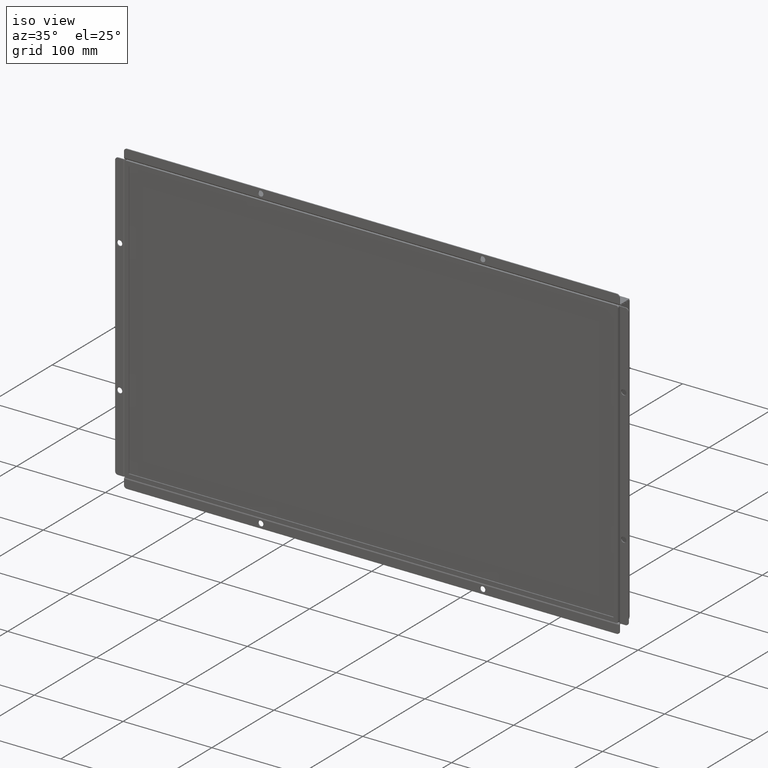
[diagram: clean part render]
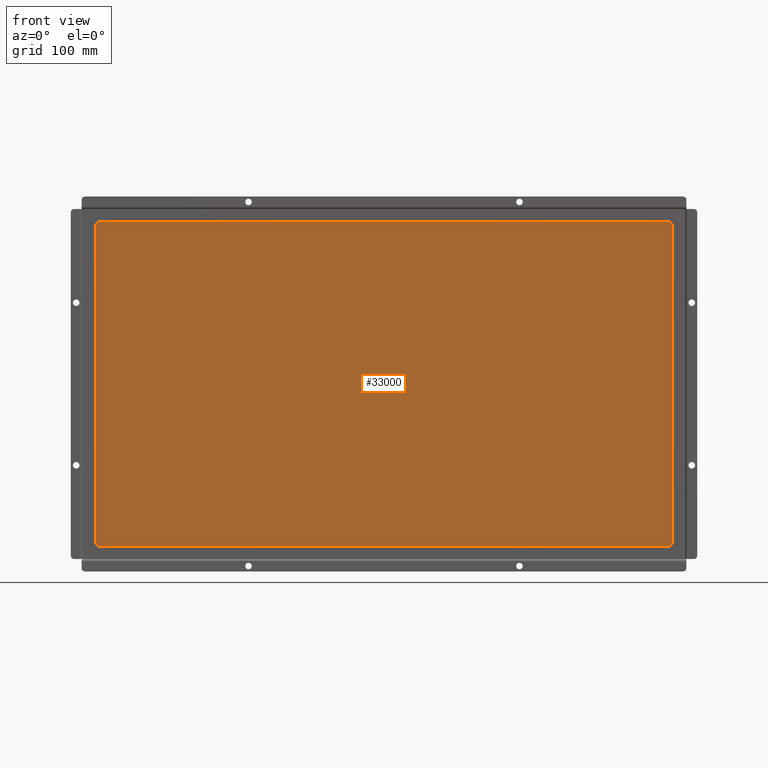
[diagram: tour spotlight — one face highlighted and labeled with its STEP entity id]
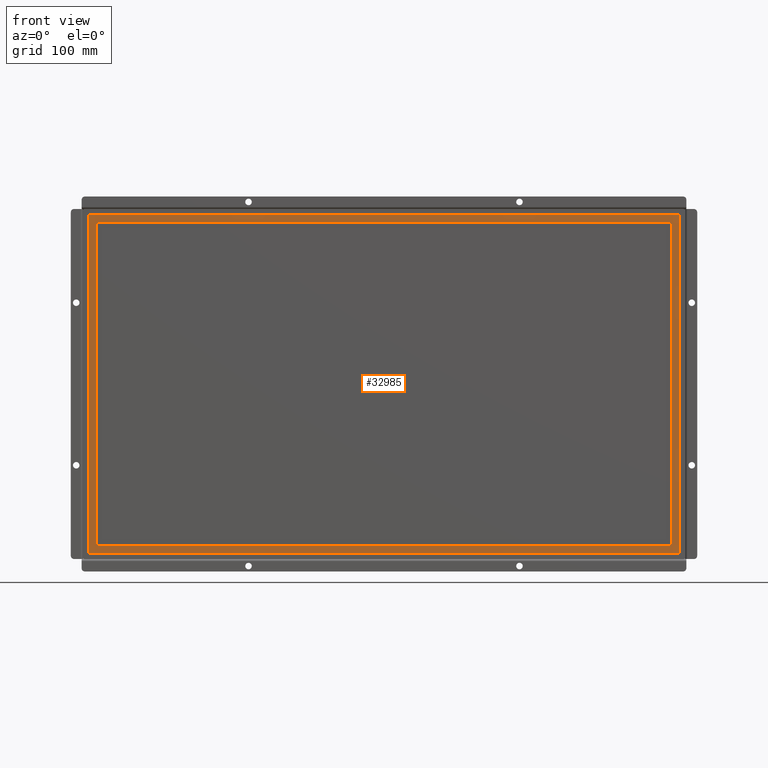
[diagram: tour spotlight — one face highlighted and labeled with its STEP entity id]
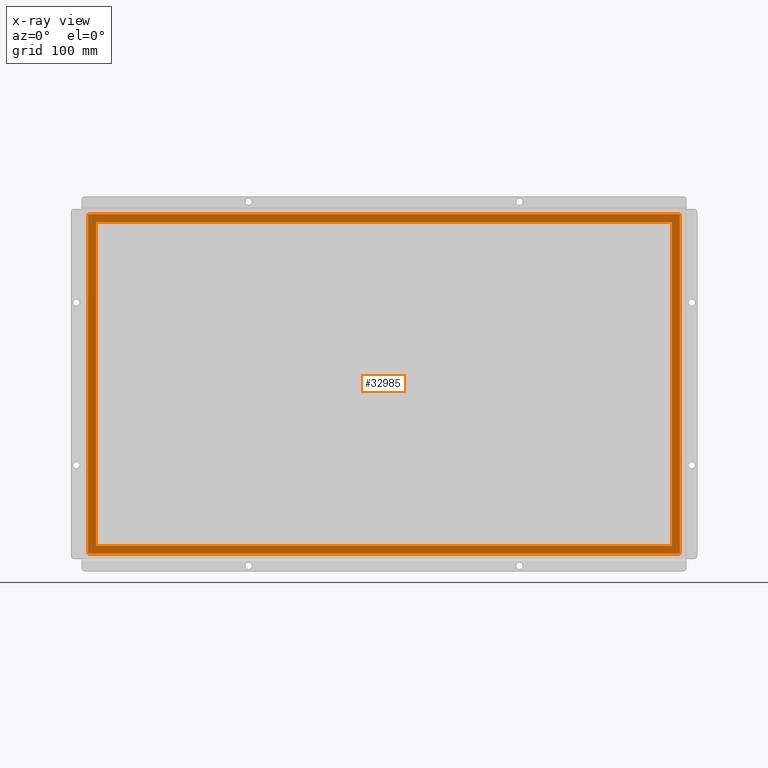
[diagram: x-ray of the same camera — body ghosted, this tour face saturated]
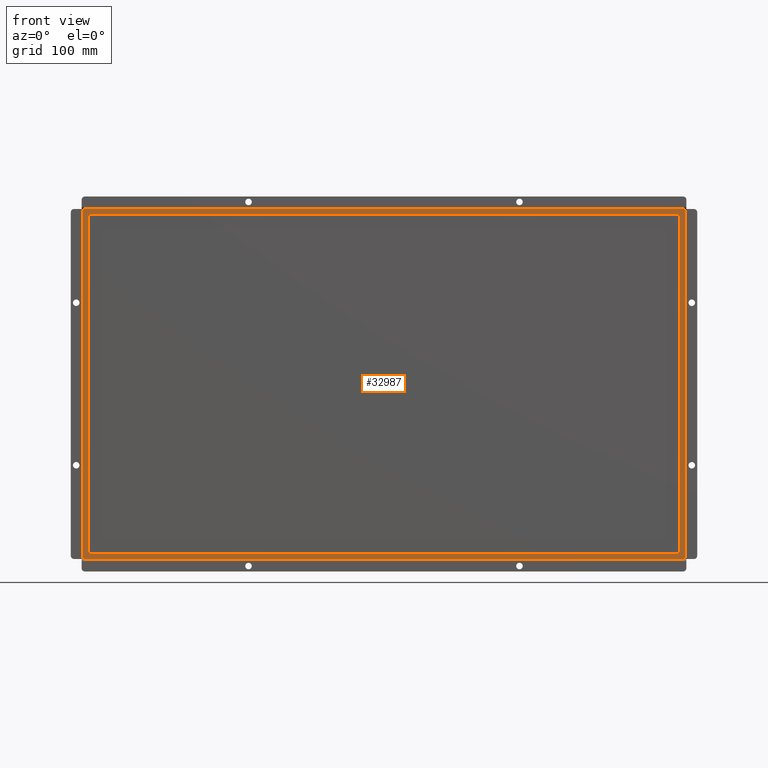
[diagram: tour spotlight — one face highlighted and labeled with its STEP entity id]
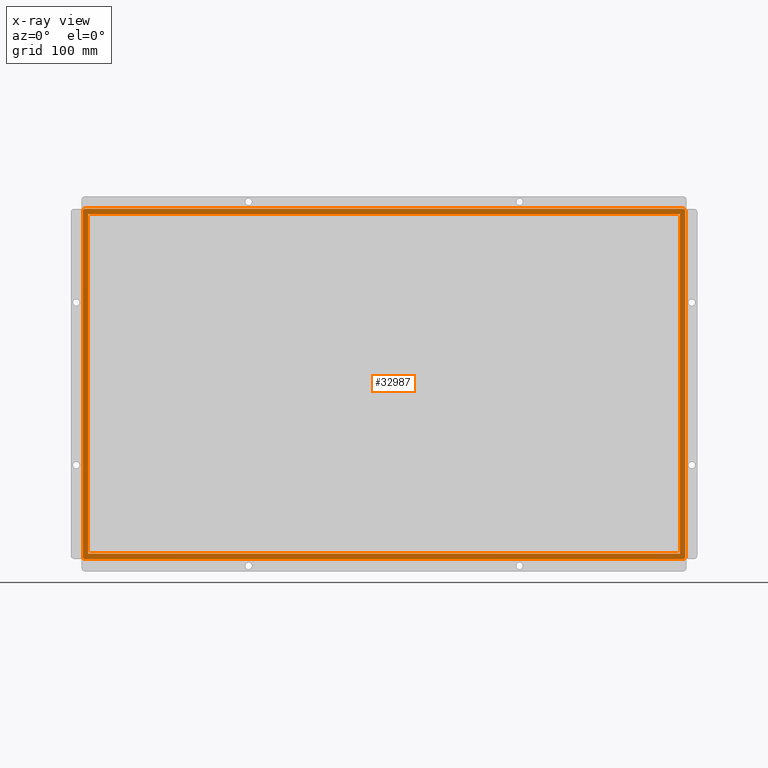
[diagram: x-ray of the same camera — body ghosted, this tour face saturated]
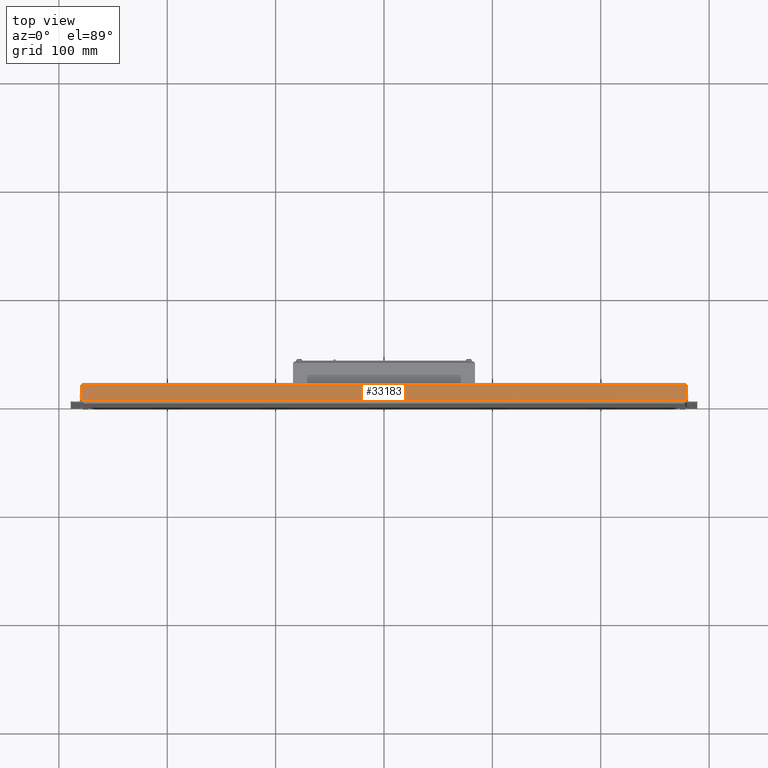
[diagram: tour spotlight — one face highlighted and labeled with its STEP entity id]
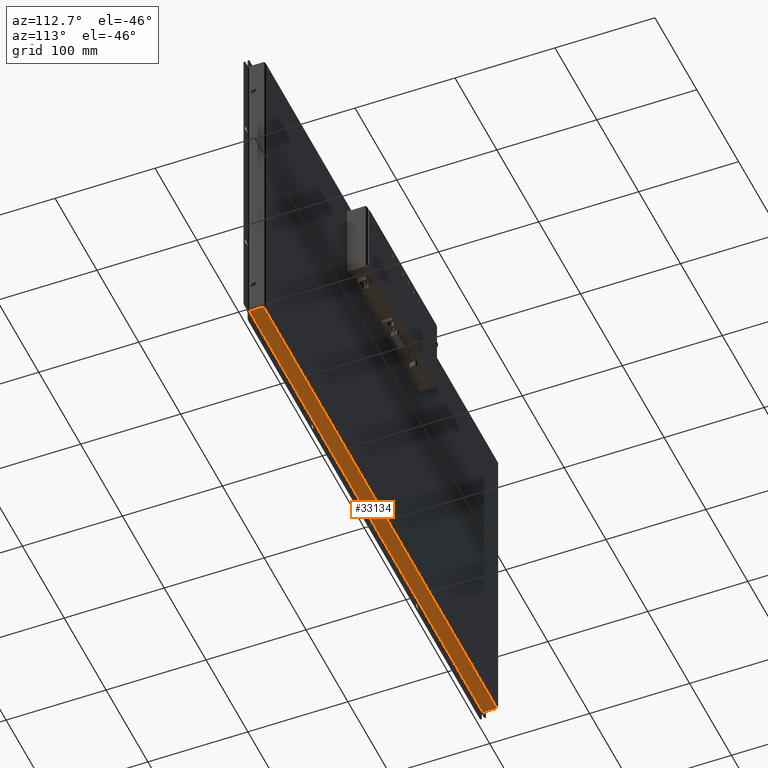
[diagram: tour spotlight — one face highlighted and labeled with its STEP entity id]
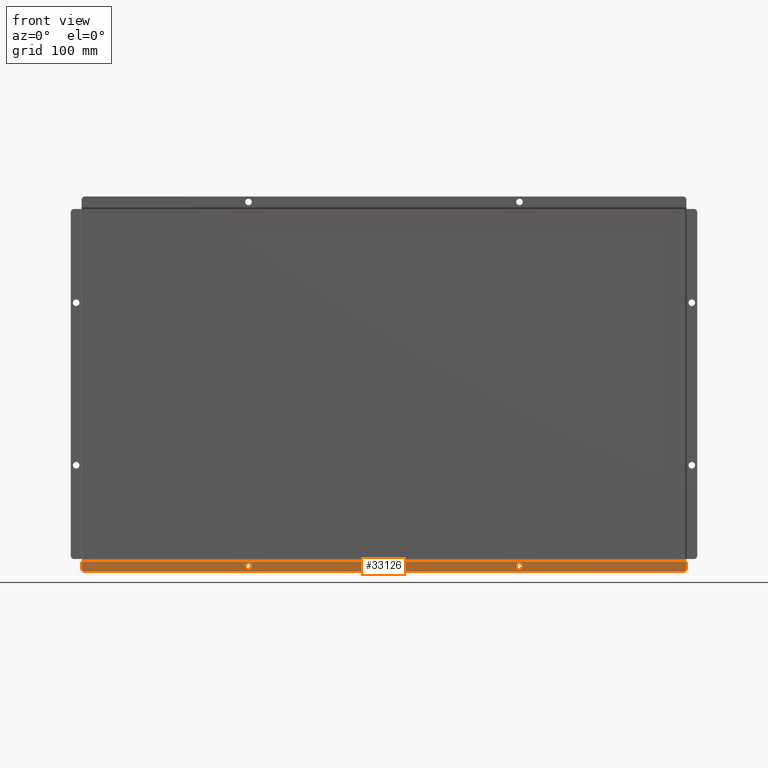
[diagram: tour spotlight — one face highlighted and labeled with its STEP entity id]
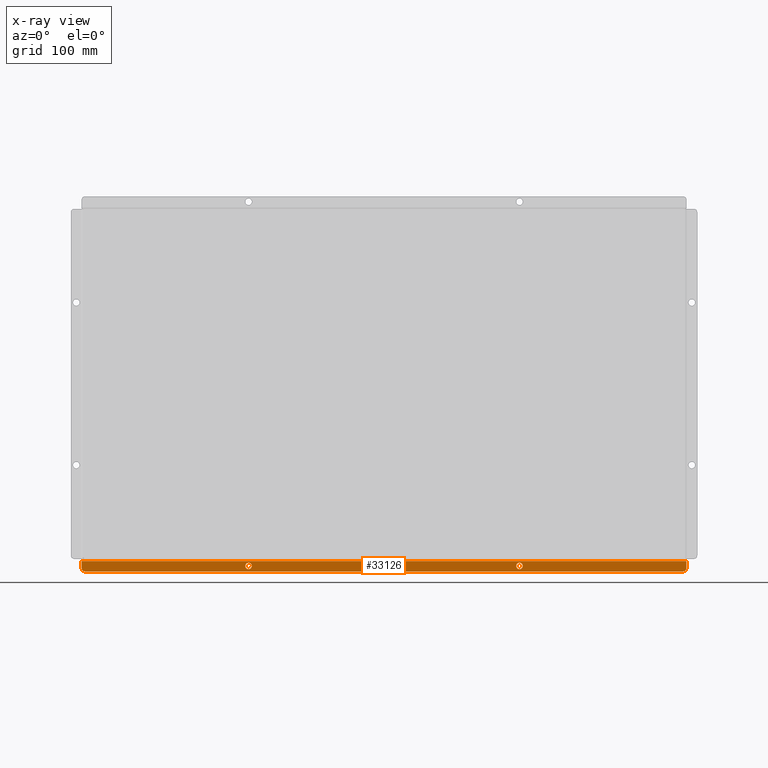
[diagram: x-ray of the same camera — body ghosted, this tour face saturated]
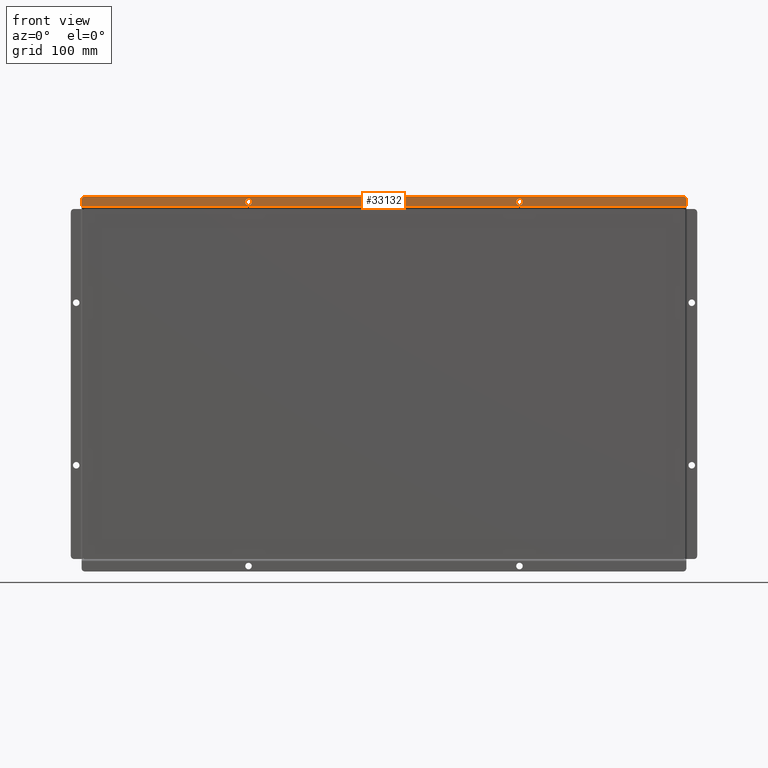
[diagram: tour spotlight — one face highlighted and labeled with its STEP entity id]
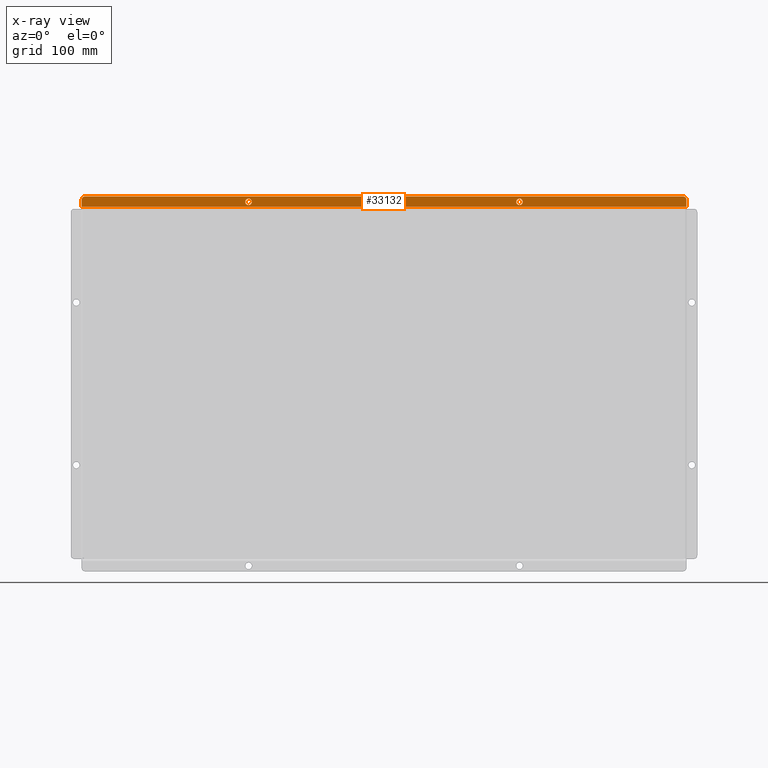
[diagram: x-ray of the same camera — body ghosted, this tour face saturated]
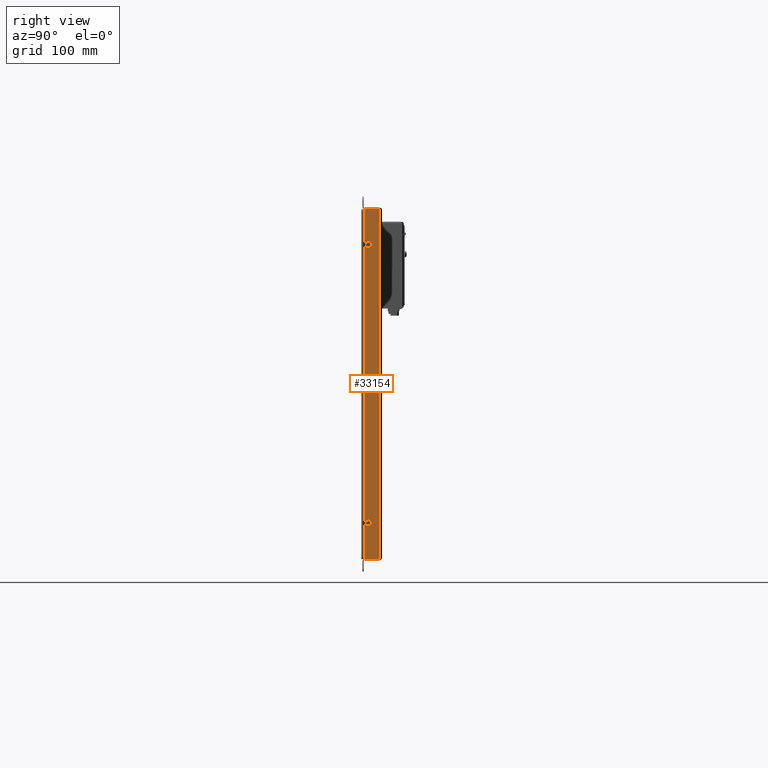
[diagram: tour spotlight — one face highlighted and labeled with its STEP entity id]
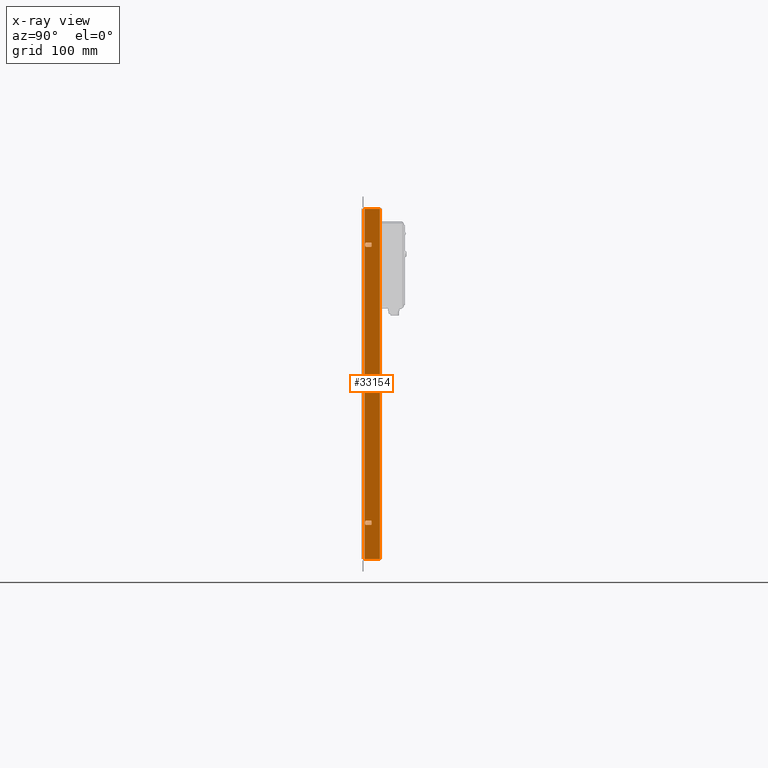
[diagram: x-ray of the same camera — body ghosted, this tour face saturated]
A machine part: a face-by-face anatomy tour. The part has 2077 B-rep faces; the first image is the clean iso view, then the 8 largest visible faces are spotlighted one at a time (largest first), each with its STEP entity span.

Face 1 — front view, entity #33000. In plain terms, the highlighted planar face has unit normal (0, -1, 0).
Definition (entity closure, byte-faithful):
#1597=FACE_OUTER_BOUND('',#3480,.T.);
#3480=EDGE_LOOP('',(#21352,#21353,#21354,#21355,#21356,#21357,#21358,#21359));
#5653=LINE('',#47878,#8806);
#5654=LINE('',#47882,#8807);
#5655=LINE('',#47886,#8808);
#5656=LINE('',#47889,#8809);
#8806=VECTOR('',#38533,10.);
#8807=VECTOR('',#38536,10.);
#8808=VECTOR('',#38539,10.);
#8809=VECTOR('',#38542,10.);
#11920=CIRCLE('',#35338,1.99999999999999);
#11921=CIRCLE('',#35339,1.99999999999999);
#11922=CIRCLE('',#35340,2.00000000000003);
#11923=CIRCLE('',#35341,1.99999999999999);
#13274=VERTEX_POINT('',#47874);
#13275=VERTEX_POINT('',#47875);
#13276=VERTEX_POINT('',#47877);
#13277=VERTEX_POINT('',#47879);
#13278=VERTEX_POINT('',#47881);
#13279=VERTEX_POINT('',#47883);
#13280=VERTEX_POINT('',#47885);
#13281=VERTEX_POINT('',#47887);
#16460=EDGE_CURVE('',#13274,#13275,#11920,.T.);
#16461=EDGE_CURVE('',#13276,#13274,#5653,.T.);
#16462=EDGE_CURVE('',#13277,#13276,#11921,.T.);
#16463=EDGE_CURVE('',#13278,#13277,#5654,.T.);
#16464=EDGE_CURVE('',#13279,#13278,#11922,.T.);
#16465=EDGE_CURVE('',#13280,#13279,#5655,.T.);
#16466=EDGE_CURVE('',#13281,#13280,#11923,.T.);
#16467=EDGE_CURVE('',#13275,#13281,#5656,.T.);
#21352=ORIENTED_EDGE('',*,*,#16460,.T.);
#21353=ORIENTED_EDGE('',*,*,#16467,.T.);
#21354=ORIENTED_EDGE('',*,*,#16466,.T.);
#21355=ORIENTED_EDGE('',*,*,#16465,.T.);
#21356=ORIENTED_EDGE('',*,*,#16464,.T.);
#21357=ORIENTED_EDGE('',*,*,#16463,.T.);
#21358=ORIENTED_EDGE('',*,*,#16462,.T.);
#21359=ORIENTED_EDGE('',*,*,#16461,.T.);
#30679=PLANE('',#35360);
#33000=ADVANCED_FACE('',(#1597),#30679,.T.);
#35338=AXIS2_PLACEMENT_3D('',#47876,#38531,#38532);
#35339=AXIS2_PLACEMENT_3D('',#47880,#38534,#38535);
#35340=AXIS2_PLACEMENT_3D('',#47884,#38537,#38538);
#35341=AXIS2_PLACEMENT_3D('',#47888,#38540,#38541);
#35360=AXIS2_PLACEMENT_3D('',#47940,#38599,#38600);
#38531=DIRECTION('center_axis',(0.,0.,1.));
#38532=DIRECTION('ref_axis',(-1.,0.,0.));
#38533=DIRECTION('',(0.,1.,0.));
#38534=DIRECTION('center_axis',(0.,0.,1.));
#38535=DIRECTION('ref_axis',(0.,1.,0.));
#38536=DIRECTION('',(1.,1.34735803959364E-16,0.));
#38537=DIRECTION('center_axis',(0.,0.,1.));
#38538=DIRECTION('ref_axis',(1.,0.,0.));
#38539=DIRECTION('',(-1.20475895377955E-16,-1.,0.));
#38540=DIRECTION('center_axis',(0.,0.,1.));
#38541=DIRECTION('ref_axis',(0.,-1.,0.));
#38542=DIRECTION('',(-1.,-2.69471607918727E-16,0.));
#38599=DIRECTION('center_axis',(0.,0.,1.));
#38600=DIRECTION('ref_axis',(1.,0.,0.));
#47874=CARTESIAN_POINT('',(265.68,147.445,17.));
#47875=CARTESIAN_POINT('',(263.68,149.445,17.));
#47876=CARTESIAN_POINT('Origin',(263.68,147.445,17.));
#47877=CARTESIAN_POINT('',(265.68,-147.445,17.));
#47878=CARTESIAN_POINT('',(265.68,-73.7225,17.));
#47879=CARTESIAN_POINT('',(263.68,-149.445,17.));
#47880=CARTESIAN_POINT('Origin',(263.68,-147.445,17.));
#47881=CARTESIAN_POINT('',(-263.68,-149.445,17.));
#47882=CARTESIAN_POINT('',(-131.84,-149.445,17.));
#47883=CARTESIAN_POINT('',(-265.68,-147.445,17.));
#47884=CARTESIAN_POINT('Origin',(-263.68,-147.445,17.));
#47885=CARTESIAN_POINT('',(-265.68,147.445,17.));
#47886=CARTESIAN_POINT('',(-265.68,73.7225,17.));
#47887=CARTESIAN_POINT('',(-263.68,149.445,17.));
#47888=CARTESIAN_POINT('Origin',(-263.68,147.445,17.));
#47889=CARTESIAN_POINT('',(131.84,149.445,17.));
#47940=CARTESIAN_POINT('Origin',(3.5527136788005E-14,0.,17.));

Face 2 — front view, entity #32985. An x-ray twin of the same camera follows (body ghosted, this face saturated) — the face is partly hidden behind the body. In plain terms, the highlighted planar face has unit normal (0, -1, 0).
Definition (entity closure, byte-faithful):
#1272=FACE_BOUND('',#3460,.T.);
#1582=FACE_OUTER_BOUND('',#3459,.T.);
#3459=EDGE_LOOP('',(#21265,#21266,#21267,#21268));
#3460=EDGE_LOOP('',(#21269,#21270,#21271,#21272,#21273,#21274,#21275,#21276));
#5649=LINE('',#47868,#8802);
#5650=LINE('',#47870,#8803);
#5651=LINE('',#47872,#8804);
#5652=LINE('',#47873,#8805);
#5653=LINE('',#47878,#8806);
#5654=LINE('',#47882,#8807);
#5655=LINE('',#47886,#8808);
#5656=LINE('',#47889,#8809);
#8802=VECTOR('',#38527,10.);
#8803=VECTOR('',#38528,10.);
#8804=VECTOR('',#38529,10.);
#8805=VECTOR('',#38530,10.);
#8806=VECTOR('',#38533,10.);
#8807=VECTOR('',#38536,10.);
#8808=VECTOR('',#38539,10.);
#8809=VECTOR('',#38542,10.);
#11920=CIRCLE('',#35338,1.99999999999999);
#11921=CIRCLE('',#35339,1.99999999999999);
#11922=CIRCLE('',#35340,2.00000000000003);
#11923=CIRCLE('',#35341,1.99999999999999);
#13270=VERTEX_POINT('',#47866);
#13271=VERTEX_POINT('',#47867);
#13272=VERTEX_POINT('',#47869);
#13273=VERTEX_POINT('',#47871);
#13274=VERTEX_POINT('',#47874);
#13275=VERTEX_POINT('',#47875);
#13276=VERTEX_POINT('',#47877);
#13277=VERTEX_POINT('',#47879);
#13278=VERTEX_POINT('',#47881);
#13279=VERTEX_POINT('',#47883);
#13280=VERTEX_POINT('',#47885);
#13281=VERTEX_POINT('',#47887);
#16456=EDGE_CURVE('',#13270,#13271,#5649,.T.);
#16457=EDGE_CURVE('',#13271,#13272,#5650,.T.);
#16458=EDGE_CURVE('',#13272,#13273,#5651,.T.);
#16459=EDGE_CURVE('',#13273,#13270,#5652,.T.);
#16460=EDGE_CURVE('',#13274,#13275,#11920,.T.);
#16461=EDGE_CURVE('',#13276,#13274,#5653,.T.);
#16462=EDGE_CURVE('',#13277,#13276,#11921,.T.);
#16463=EDGE_CURVE('',#13278,#13277,#5654,.T.);
#16464=EDGE_CURVE('',#13279,#13278,#11922,.T.);
#16465=EDGE_CURVE('',#13280,#13279,#5655,.T.);
#16466=EDGE_CURVE('',#13281,#13280,#11923,.T.);
#16467=EDGE_CURVE('',#13275,#13281,#5656,.T.);
#21265=ORIENTED_EDGE('',*,*,#16456,.T.);
#21266=ORIENTED_EDGE('',*,*,#16457,.T.);
#21267=ORIENTED_EDGE('',*,*,#16458,.T.);
#21268=ORIENTED_EDGE('',*,*,#16459,.T.);
#21269=ORIENTED_EDGE('',*,*,#16460,.F.);
#21270=ORIENTED_EDGE('',*,*,#16461,.F.);
#21271=ORIENTED_EDGE('',*,*,#16462,.F.);
#21272=ORIENTED_EDGE('',*,*,#16463,.F.);
#21273=ORIENTED_EDGE('',*,*,#16464,.F.);
#21274=ORIENTED_EDGE('',*,*,#16465,.F.);
#21275=ORIENTED_EDGE('',*,*,#16466,.F.);
#21276=ORIENTED_EDGE('',*,*,#16467,.F.);
#30668=PLANE('',#35337);
#32985=ADVANCED_FACE('',(#1582,#1272),#30668,.T.);
#35337=AXIS2_PLACEMENT_3D('',#47865,#38525,#38526);
#35338=AXIS2_PLACEMENT_3D('',#47876,#38531,#38532);
#35339=AXIS2_PLACEMENT_3D('',#47880,#38534,#38535);
#35340=AXIS2_PLACEMENT_3D('',#47884,#38537,#38538);
#35341=AXIS2_PLACEMENT_3D('',#47888,#38540,#38541);
#38525=DIRECTION('center_axis',(0.,0.,1.));
#38526=DIRECTION('ref_axis',(1.,0.,0.));
#38527=DIRECTION('',(1.,1.2779545607196E-16,0.));
#38528=DIRECTION('',(-3.40298245095833E-16,1.,0.));
#38529=DIRECTION('',(-1.,-1.59744320089951E-16,0.));
#38530=DIRECTION('',(1.13432748365278E-16,-1.,0.));
#38531=DIRECTION('center_axis',(0.,0.,1.));
#38532=DIRECTION('ref_axis',(-1.,0.,0.));
#38533=DIRECTION('',(0.,1.,0.));
#38534=DIRECTION('center_axis',(0.,0.,1.));
#38535=DIRECTION('ref_axis',(0.,1.,0.));
#38536=DIRECTION('',(1.,1.34735803959364E-16,0.));
#38537=DIRECTION('center_axis',(0.,0.,1.));
#38538=DIRECTION('ref_axis',(1.,0.,0.));
#38539=DIRECTION('',(-1.20475895377955E-16,-1.,0.));
#38540=DIRECTION('center_axis',(0.,0.,1.));
#38541=DIRECTION('ref_axis',(0.,-1.,0.));
#38542=DIRECTION('',(-1.,-2.69471607918727E-16,0.));
#47865=CARTESIAN_POINT('Origin',(3.5527136788005E-14,0.,17.));
#47866=CARTESIAN_POINT('',(-273.,-156.6,17.));
#47867=CARTESIAN_POINT('',(273.,-156.6,17.));
#47868=CARTESIAN_POINT('',(139.,-156.6,17.));
#47869=CARTESIAN_POINT('',(273.,156.6,17.));
#47870=CARTESIAN_POINT('',(273.,78.3,17.));
#47871=CARTESIAN_POINT('',(-273.,156.6,17.));
#47872=CARTESIAN_POINT('',(-139.,156.6,17.));
#47873=CARTESIAN_POINT('',(-273.,-78.3,17.));
#47874=CARTESIAN_POINT('',(265.68,147.445,17.));
#47875=CARTESIAN_POINT('',(263.68,149.445,17.));
#47876=CARTESIAN_POINT('Origin',(263.68,147.445,17.));
#47877=CARTESIAN_POINT('',(265.68,-147.445,17.));
#47878=CARTESIAN_POINT('',(265.68,-73.7225,17.));
#47879=CARTESIAN_POINT('',(263.68,-149.445,17.));
#47880=CARTESIAN_POINT('Origin',(263.68,-147.445,17.));
#47881=CARTESIAN_POINT('',(-263.68,-149.445,17.));
#47882=CARTESIAN_POINT('',(-131.84,-149.445,17.));
#47883=CARTESIAN_POINT('',(-265.68,-147.445,17.));
#47884=CARTESIAN_POINT('Origin',(-263.68,-147.445,17.));
#47885=CARTESIAN_POINT('',(-265.68,147.445,17.));
#47886=CARTESIAN_POINT('',(-265.68,73.7225,17.));
#47887=CARTESIAN_POINT('',(-263.68,149.445,17.));
#47888=CARTESIAN_POINT('Origin',(-263.68,147.445,17.));
#47889=CARTESIAN_POINT('',(131.84,149.445,17.));

Face 3 — front view, entity #32987. An x-ray twin of the same camera follows (body ghosted, this face saturated) — the face is partly hidden behind the body. In plain terms, the highlighted planar face has unit normal (0, -1, 0).
Definition (entity closure, byte-faithful):
#1273=FACE_BOUND('',#3463,.T.);
#1584=FACE_OUTER_BOUND('',#3462,.T.);
#3462=EDGE_LOOP('',(#21281,#21282,#21283,#21284,#21285,#21286,#21287,#21288));
#3463=EDGE_LOOP('',(#21289,#21290,#21291,#21292));
#5659=LINE('',#47898,#8812);
#5660=LINE('',#47902,#8813);
#5661=LINE('',#47906,#8814);
#5662=LINE('',#47909,#8815);
#5663=LINE('',#47912,#8816);
#5664=LINE('',#47914,#8817);
#5665=LINE('',#47916,#8818);
#5666=LINE('',#47917,#8819);
#8812=VECTOR('',#38551,10.);
#8813=VECTOR('',#38554,10.);
#8814=VECTOR('',#38557,10.);
#8815=VECTOR('',#38560,10.);
#8816=VECTOR('',#38561,10.);
#8817=VECTOR('',#38562,10.);
#8818=VECTOR('',#38563,10.);
#8819=VECTOR('',#38564,10.);
#11924=CIRCLE('',#35343,2.);
#11925=CIRCLE('',#35345,2.);
#11926=CIRCLE('',#35346,2.);
#11927=CIRCLE('',#35347,2.);
#13282=VERTEX_POINT('',#47891);
#13283=VERTEX_POINT('',#47892);
#13284=VERTEX_POINT('',#47897);
#13285=VERTEX_POINT('',#47899);
#13286=VERTEX_POINT('',#47901);
#13287=VERTEX_POINT('',#47903);
#13288=VERTEX_POINT('',#47905);
#13289=VERTEX_POINT('',#47907);
#13290=VERTEX_POINT('',#47910);
#13291=VERTEX_POINT('',#47911);
#13292=VERTEX_POINT('',#47913);
#13293=VERTEX_POINT('',#47915);
#16468=EDGE_CURVE('',#13282,#13283,#11924,.T.);
#16471=EDGE_CURVE('',#13282,#13284,#5659,.T.);
#16472=EDGE_CURVE('',#13285,#13284,#11925,.T.);
#16473=EDGE_CURVE('',#13285,#13286,#5660,.T.);
#16474=EDGE_CURVE('',#13287,#13286,#11926,.T.);
#16475=EDGE_CURVE('',#13287,#13288,#5661,.T.);
#16476=EDGE_CURVE('',#13289,#13288,#11927,.T.);
#16477=EDGE_CURVE('',#13289,#13283,#5662,.T.);
#16478=EDGE_CURVE('',#13290,#13291,#5663,.T.);
#16479=EDGE_CURVE('',#13291,#13292,#5664,.T.);
#16480=EDGE_CURVE('',#13292,#13293,#5665,.T.);
#16481=EDGE_CURVE('',#13293,#13290,#5666,.T.);
#21281=ORIENTED_EDGE('',*,*,#16468,.F.);
#21282=ORIENTED_EDGE('',*,*,#16471,.T.);
#21283=ORIENTED_EDGE('',*,*,#16472,.F.);
#21284=ORIENTED_EDGE('',*,*,#16473,.T.);
#21285=ORIENTED_EDGE('',*,*,#16474,.F.);
#21286=ORIENTED_EDGE('',*,*,#16475,.T.);
#21287=ORIENTED_EDGE('',*,*,#16476,.F.);
#21288=ORIENTED_EDGE('',*,*,#16477,.T.);
#21289=ORIENTED_EDGE('',*,*,#16478,.T.);
#21290=ORIENTED_EDGE('',*,*,#16479,.T.);
#21291=ORIENTED_EDGE('',*,*,#16480,.T.);
#21292=ORIENTED_EDGE('',*,*,#16481,.T.);
#30669=PLANE('',#35344);
#32987=ADVANCED_FACE('',(#1584,#1273),#30669,.T.);
#35343=AXIS2_PLACEMENT_3D('',#47893,#38545,#38546);
#35344=AXIS2_PLACEMENT_3D('',#47896,#38549,#38550);
#35345=AXIS2_PLACEMENT_3D('',#47900,#38552,#38553);
#35346=AXIS2_PLACEMENT_3D('',#47904,#38555,#38556);
#35347=AXIS2_PLACEMENT_3D('',#47908,#38558,#38559);
#38545=DIRECTION('center_axis',(0.,0.,-1.));
#38546=DIRECTION('ref_axis',(-0.707106781186548,0.707106781186548,0.));
#38549=DIRECTION('center_axis',(0.,0.,1.));
#38550=DIRECTION('ref_axis',(1.,0.,0.));
#38551=DIRECTION('',(0.,-1.,0.));
#38552=DIRECTION('center_axis',(0.,0.,-1.));
#38553=DIRECTION('ref_axis',(-0.707106781186541,-0.707106781186554,0.));
#38554=DIRECTION('',(1.,1.2779545607196E-16,0.));
#38555=DIRECTION('center_axis',(0.,0.,-1.));
#38556=DIRECTION('ref_axis',(0.707106781186548,-0.707106781186548,0.));
#38557=DIRECTION('',(-1.09923071745065E-16,1.,0.));
#38558=DIRECTION('center_axis',(0.,0.,-1.));
#38559=DIRECTION('ref_axis',(0.707106781186541,0.707106781186554,0.));
#38560=DIRECTION('',(-1.,0.,0.));
#38561=DIRECTION('',(1.,1.59744320089951E-16,0.));
#38562=DIRECTION('',(3.40298245095833E-16,-1.,0.));
#38563=DIRECTION('',(-1.,-1.2779545607196E-16,0.));
#38564=DIRECTION('',(-1.13432748365278E-16,1.,0.));
#47891=CARTESIAN_POINT('',(-278.,159.6,18.));
#47892=CARTESIAN_POINT('',(-276.,161.6,18.));
#47893=CARTESIAN_POINT('Origin',(-276.,159.6,18.));
#47896=CARTESIAN_POINT('Origin',(275.5,1.77635683940025E-14,18.));
#47897=CARTESIAN_POINT('',(-278.,-159.6,18.));
#47898=CARTESIAN_POINT('',(-278.,161.6,18.));
#47899=CARTESIAN_POINT('',(-276.,-161.6,18.));
#47900=CARTESIAN_POINT('Origin',(-276.,-159.6,18.));
#47901=CARTESIAN_POINT('',(276.,-161.6,18.));
#47902=CARTESIAN_POINT('',(-278.,-161.6,18.));
#47903=CARTESIAN_POINT('',(278.,-159.6,18.));
#47904=CARTESIAN_POINT('Origin',(276.,-159.6,18.));
#47905=CARTESIAN_POINT('',(278.,159.6,18.));
#47906=CARTESIAN_POINT('',(278.,-161.6,18.));
#47907=CARTESIAN_POINT('',(276.,161.6,18.));
#47908=CARTESIAN_POINT('Origin',(276.,159.6,18.));
#47909=CARTESIAN_POINT('',(278.,161.6,18.));
#47910=CARTESIAN_POINT('',(-273.,156.6,18.));
#47911=CARTESIAN_POINT('',(273.,156.6,18.));
#47912=CARTESIAN_POINT('',(-278.,156.6,18.));
#47913=CARTESIAN_POINT('',(273.,-156.6,18.));
#47914=CARTESIAN_POINT('',(273.,156.6,18.));
#47915=CARTESIAN_POINT('',(-273.,-156.6,18.));
#47916=CARTESIAN_POINT('',(278.,-156.6,18.));
#47917=CARTESIAN_POINT('',(-273.,-156.6,18.));

Face 4 — top view, entity #33183. In plain terms, the highlighted planar face has unit normal (0, 0, 1).
Definition (entity closure, byte-faithful):
#1780=FACE_OUTER_BOUND('',#3703,.T.);
#3703=EDGE_LOOP('',(#22314,#22315,#22316,#22317));
#5921=LINE('',#48729,#9074);
#5931=LINE('',#48749,#9084);
#5962=LINE('',#48836,#9115);
#5966=LINE('',#48934,#9119);
#9074=VECTOR('',#39401,10.);
#9084=VECTOR('',#39419,10.);
#9115=VECTOR('',#39506,10.);
#9119=VECTOR('',#39514,10.);
#13558=VERTEX_POINT('',#48720);
#13559=VERTEX_POINT('',#48724);
#13565=VERTEX_POINT('',#48747);
#13585=VERTEX_POINT('',#48827);
#16880=EDGE_CURVE('',#13558,#13559,#5921,.T.);
#16890=EDGE_CURVE('',#13559,#13565,#5931,.T.);
#16930=EDGE_CURVE('',#13565,#13585,#5962,.T.);
#16939=EDGE_CURVE('',#13558,#13585,#5966,.T.);
#22314=ORIENTED_EDGE('',*,*,#16880,.T.);
#22315=ORIENTED_EDGE('',*,*,#16890,.T.);
#22316=ORIENTED_EDGE('',*,*,#16930,.T.);
#22317=ORIENTED_EDGE('',*,*,#16939,.F.);
#30777=PLANE('',#35684);
#33183=ADVANCED_FACE('',(#1780),#30777,.T.);
#35684=AXIS2_PLACEMENT_3D('',#49363,#39550,#39551);
#39401=DIRECTION('',(-1.,-3.84474391424399E-16,6.01382207856468E-32));
#39419=DIRECTION('',(-2.66453525910038E-14,2.44249065417535E-14,1.));
#39506=DIRECTION('',(1.,3.84474391424399E-16,-2.50587048754145E-32));
#39514=DIRECTION('',(4.44089209850063E-15,2.44249065417535E-14,1.));
#39550=DIRECTION('center_axis',(-3.84474391424399E-16,1.,-2.38704326519767E-14));
#39551=DIRECTION('ref_axis',(1.,3.84474391424408E-16,3.83386368215881E-16));
#48720=CARTESIAN_POINT('',(279.,162.6,-15.));
#48724=CARTESIAN_POINT('',(-279.,162.6,-15.));
#48729=CARTESIAN_POINT('',(-139.5,162.6,-15.));
#48747=CARTESIAN_POINT('',(-279.,162.6,-1.0000000000001));
#48749=CARTESIAN_POINT('',(-279.,162.6,-1.00000000000009));
#48827=CARTESIAN_POINT('',(279.,162.6,-1.00000000000017));
#48836=CARTESIAN_POINT('',(-8.45362773576322E-15,162.6,-1.00000000000009));
#48934=CARTESIAN_POINT('',(279.,162.6,-1.00000000000007));
#49363=CARTESIAN_POINT('Origin',(-1.61398734420979E-14,162.6,-7.86902664470773));

Face 5 — auxiliary view, entity #33134. In plain terms, the highlighted planar face has unit normal (-0, -0, -1).
Definition (entity closure, byte-faithful):
#1731=FACE_OUTER_BOUND('',#3626,.T.);
#3626=EDGE_LOOP('',(#21942,#21943,#21944,#21945));
#5914=LINE('',#48707,#9067);
#5922=LINE('',#48732,#9075);
#5923=LINE('',#48734,#9076);
#5924=LINE('',#48735,#9077);
#9067=VECTOR('',#39374,10.);
#9075=VECTOR('',#39404,10.);
#9076=VECTOR('',#39405,10.);
#9077=VECTOR('',#39406,10.);
#13553=VERTEX_POINT('',#48696);
#13554=VERTEX_POINT('',#48700);
#13560=VERTEX_POINT('',#48731);
#13561=VERTEX_POINT('',#48733);
#16869=EDGE_CURVE('',#13553,#13554,#5914,.T.);
#16881=EDGE_CURVE('',#13554,#13560,#5922,.T.);
#16882=EDGE_CURVE('',#13560,#13561,#5923,.T.);
#16883=EDGE_CURVE('',#13553,#13561,#5924,.T.);
#21942=ORIENTED_EDGE('',*,*,#16869,.T.);
#21943=ORIENTED_EDGE('',*,*,#16881,.T.);
#21944=ORIENTED_EDGE('',*,*,#16882,.T.);
#21945=ORIENTED_EDGE('',*,*,#16883,.F.);
#30752=PLANE('',#35639);
#33134=ADVANCED_FACE('',(#1731),#30752,.T.);
#35639=AXIS2_PLACEMENT_3D('',#48730,#39402,#39403);
#39374=DIRECTION('',(1.,1.28883479280478E-16,3.77626503840874E-32));
#39402=DIRECTION('center_axis',(1.28883479280478E-16,-1.,-2.38704326519767E-14));
#39403=DIRECTION('ref_axis',(1.,1.28883479280481E-16,-1.2779545607196E-16));
#39404=DIRECTION('',(-4.44089209850063E-15,-2.44249065417535E-14,1.));
#39405=DIRECTION('',(-1.,-1.28883479280478E-16,-2.50587048754146E-32));
#39406=DIRECTION('',(-2.66453525910038E-14,-2.44249065417535E-14,1.));
#48696=CARTESIAN_POINT('',(-279.,-162.6,-15.));
#48700=CARTESIAN_POINT('',(279.,-162.6,-15.));
#48707=CARTESIAN_POINT('',(139.5,-162.6,-15.));
#48730=CARTESIAN_POINT('Origin',(-7.91820292282501E-14,-162.6,-7.86902664470773));
#48731=CARTESIAN_POINT('',(279.,-162.6,-1.00000000000006));
#48732=CARTESIAN_POINT('',(279.,-162.6,-1.00000000000008));
#48733=CARTESIAN_POINT('',(-279.,-162.6,-1.00000000000021));
#48734=CARTESIAN_POINT('',(-7.49900512995597E-14,-162.6,-1.00000000000009));
#48735=CARTESIAN_POINT('',(-279.,-162.6,-1.00000000000007));

Face 6 — front view, entity #33126. An x-ray twin of the same camera follows (body ghosted, this face saturated) — the face is partly hidden behind the body. In plain terms, the highlighted planar face has unit normal (-0, -1, 0).
Definition (entity closure, byte-faithful):
#1286=FACE_BOUND('',#3615,.T.);
#1287=FACE_BOUND('',#3616,.T.);
#1723=FACE_OUTER_BOUND('',#3614,.T.);
#3614=EDGE_LOOP('',(#21898,#21899,#21900,#21901,#21902,#21903));
#3615=EDGE_LOOP('',(#21904,#21905));
#3616=EDGE_LOOP('',(#21906,#21907));
#5868=LINE('',#48576,#9021);
#5904=LINE('',#48678,#9057);
#5909=LINE('',#48689,#9062);
#5913=LINE('',#48704,#9066);
#9021=VECTOR('',#39244,10.);
#9057=VECTOR('',#39338,10.);
#9062=VECTOR('',#39351,10.);
#9066=VECTOR('',#39369,10.);
#12024=CIRCLE('',#35552,3.);
#12025=CIRCLE('',#35553,3.);
#12042=CIRCLE('',#35576,3.);
#12043=CIRCLE('',#35577,3.);
#12048=CIRCLE('',#35584,3.);
#12062=CIRCLE('',#35614,3.);
#13482=VERTEX_POINT('',#48499);
#13483=VERTEX_POINT('',#48500);
#13500=VERTEX_POINT('',#48547);
#13501=VERTEX_POINT('',#48548);
#13506=VERTEX_POINT('',#48563);
#13507=VERTEX_POINT('',#48564);
#13511=VERTEX_POINT('',#48574);
#13546=VERTEX_POINT('',#48671);
#13547=VERTEX_POINT('',#48672);
#13548=VERTEX_POINT('',#48677);
#16767=EDGE_CURVE('',#13482,#13483,#12024,.T.);
#16768=EDGE_CURVE('',#13483,#13482,#12025,.T.);
#16791=EDGE_CURVE('',#13500,#13501,#12042,.T.);
#16792=EDGE_CURVE('',#13501,#13500,#12043,.T.);
#16799=EDGE_CURVE('',#13506,#13507,#12048,.T.);
#16805=EDGE_CURVE('',#13511,#13506,#5868,.T.);
#16851=EDGE_CURVE('',#13546,#13547,#12062,.T.);
#16854=EDGE_CURVE('',#13547,#13548,#5904,.T.);
#16860=EDGE_CURVE('',#13511,#13548,#5909,.T.);
#16868=EDGE_CURVE('',#13507,#13546,#5913,.T.);
#21898=ORIENTED_EDGE('',*,*,#16799,.F.);
#21899=ORIENTED_EDGE('',*,*,#16805,.F.);
#21900=ORIENTED_EDGE('',*,*,#16860,.T.);
#21901=ORIENTED_EDGE('',*,*,#16854,.F.);
#21902=ORIENTED_EDGE('',*,*,#16851,.F.);
#21903=ORIENTED_EDGE('',*,*,#16868,.F.);
#21904=ORIENTED_EDGE('',*,*,#16767,.T.);
#21905=ORIENTED_EDGE('',*,*,#16768,.T.);
#21906=ORIENTED_EDGE('',*,*,#16791,.T.);
#21907=ORIENTED_EDGE('',*,*,#16792,.T.);
#30747=PLANE('',#35627);
#33126=ADVANCED_FACE('',(#1723,#1286,#1287),#30747,.T.);
#35552=AXIS2_PLACEMENT_3D('',#48501,#39162,#39163);
#35553=AXIS2_PLACEMENT_3D('',#48502,#39164,#39165);
#35576=AXIS2_PLACEMENT_3D('',#48549,#39216,#39217);
#35577=AXIS2_PLACEMENT_3D('',#48550,#39218,#39219);
#35584=AXIS2_PLACEMENT_3D('',#48565,#39234,#39235);
#35614=AXIS2_PLACEMENT_3D('',#48673,#39332,#39333);
#35627=AXIS2_PLACEMENT_3D('',#48705,#39370,#39371);
#39162=DIRECTION('center_axis',(-1.31604364063432E-16,-3.61659731774479E-14,
1.));
#39163=DIRECTION('ref_axis',(1.,-7.41513365530766E-31,3.82358215767803E-19));
#39164=DIRECTION('center_axis',(-1.31604364063432E-16,-3.61659731774479E-14,
1.));
#39165=DIRECTION('ref_axis',(1.,-7.41513365530766E-31,3.82358215767803E-19));
#39216=DIRECTION('center_axis',(-1.31604364063432E-16,-3.61659731774479E-14,
1.));
#39217=DIRECTION('ref_axis',(1.,-7.41513365530766E-31,3.82358215767803E-19));
#39218=DIRECTION('center_axis',(-1.31604364063432E-16,-3.61659731774479E-14,
1.));
#39219=DIRECTION('ref_axis',(1.,-7.41513365530766E-31,3.82358215767803E-19));
#39234=DIRECTION('center_axis',(-1.31604364063432E-16,-3.61659731774479E-14,
1.));
#39235=DIRECTION('ref_axis',(-0.707106781186556,-0.707106781186539,-2.3028022727362E-14));
#39244=DIRECTION('',(1.28883479280478E-16,-1.,-3.45898060283356E-14));
#39332=DIRECTION('center_axis',(-1.31604364063432E-16,-3.61659731774479E-14,
1.));
#39333=DIRECTION('ref_axis',(0.707106781186531,-0.707106781186564,-2.30280227273612E-14));
#39338=DIRECTION('',(4.69904451349941E-14,1.,2.64258162477837E-14));
#39351=DIRECTION('',(1.,1.28883479280474E-16,1.31604364063437E-16));
#39369=DIRECTION('',(1.,1.28883479280474E-16,1.28883479280481E-16));
#39370=DIRECTION('center_axis',(1.31604364063432E-16,3.61659731774479E-14,
-1.));
#39371=DIRECTION('ref_axis',(-1.28883479280479E-16,1.,3.61659731774479E-14));
#48499=CARTESIAN_POINT('',(128.,-168.,-16.9999999999984));
#48500=CARTESIAN_POINT('',(122.,-168.,-17.0000000000002));
#48501=CARTESIAN_POINT('Origin',(125.,-168.,-17.));
#48502=CARTESIAN_POINT('Origin',(125.,-168.,-17.));
#48547=CARTESIAN_POINT('',(-122.,-168.,-16.9999999999984));
#48548=CARTESIAN_POINT('',(-128.,-168.,-17.0000000000002));
#48549=CARTESIAN_POINT('Origin',(-125.,-168.,-17.));
#48550=CARTESIAN_POINT('Origin',(-125.,-168.,-17.));
#48563=CARTESIAN_POINT('',(-279.,-170.,-17.0000000000002));
#48564=CARTESIAN_POINT('',(-275.999999999999,-173.,-17.0000000000003));
#48565=CARTESIAN_POINT('Origin',(-275.999999999999,-170.,-17.0000000000002));
#48574=CARTESIAN_POINT('',(-279.,-163.6,-17.));
#48576=CARTESIAN_POINT('',(-279.,-163.6,-17.));
#48671=CARTESIAN_POINT('',(275.999999999999,-173.,-17.0000000000002));
#48672=CARTESIAN_POINT('',(278.999999999999,-170.,-17.0000000000001));
#48673=CARTESIAN_POINT('Origin',(275.999999999999,-169.999999999999,-17.0000000000001));
#48677=CARTESIAN_POINT('',(279.,-163.6,-16.9999999999999));
#48678=CARTESIAN_POINT('',(279.,-161.338053289415,-16.9999999999999));
#48689=CARTESIAN_POINT('',(1.42228298080242E-13,-163.6,-16.9999999999999));
#48704=CARTESIAN_POINT('',(-279.,-173.,-17.0000000000003));
#48705=CARTESIAN_POINT('Origin',(1.42548746926039E-13,-167.169026644707,
-17.));

Face 7 — front view, entity #33132. An x-ray twin of the same camera follows (body ghosted, this face saturated) — the face is partly hidden behind the body. In plain terms, the highlighted planar face has unit normal (0, 1, 0).
Definition (entity closure, byte-faithful):
#1288=FACE_BOUND('',#3623,.T.);
#1289=FACE_BOUND('',#3624,.T.);
#1729=FACE_OUTER_BOUND('',#3622,.T.);
#3622=EDGE_LOOP('',(#21928,#21929,#21930,#21931,#21932,#21933));
#3623=EDGE_LOOP('',(#21934,#21935));
#3624=EDGE_LOOP('',(#21936,#21937));
#5887=LINE('',#48630,#9040);
#5901=LINE('',#48669,#9054);
#5915=LINE('',#48710,#9068);
#5917=LINE('',#48717,#9070);
#9040=VECTOR('',#39293,10.);
#9054=VECTOR('',#39329,10.);
#9068=VECTOR('',#39377,10.);
#9070=VECTOR('',#39385,10.);
#12033=CIRCLE('',#35564,3.);
#12034=CIRCLE('',#35565,3.);
#12036=CIRCLE('',#35568,3.);
#12037=CIRCLE('',#35569,3.);
#12055=CIRCLE('',#35599,3.);
#12061=CIRCLE('',#35611,3.);
#13491=VERTEX_POINT('',#48523);
#13492=VERTEX_POINT('',#48524);
#13494=VERTEX_POINT('',#48531);
#13495=VERTEX_POINT('',#48532);
#13526=VERTEX_POINT('',#48617);
#13527=VERTEX_POINT('',#48618);
#13531=VERTEX_POINT('',#48628);
#13544=VERTEX_POINT('',#48663);
#13545=VERTEX_POINT('',#48667);
#13555=VERTEX_POINT('',#48709);
#16779=EDGE_CURVE('',#13491,#13492,#12033,.T.);
#16780=EDGE_CURVE('',#13492,#13491,#12034,.T.);
#16783=EDGE_CURVE('',#13494,#13495,#12036,.T.);
#16784=EDGE_CURVE('',#13495,#13494,#12037,.T.);
#16825=EDGE_CURVE('',#13526,#13527,#12055,.T.);
#16831=EDGE_CURVE('',#13531,#13526,#5887,.T.);
#16847=EDGE_CURVE('',#13544,#13531,#12061,.T.);
#16850=EDGE_CURVE('',#13545,#13544,#5901,.T.);
#16870=EDGE_CURVE('',#13545,#13555,#5915,.T.);
#16874=EDGE_CURVE('',#13527,#13555,#5917,.T.);
#21928=ORIENTED_EDGE('',*,*,#16825,.F.);
#21929=ORIENTED_EDGE('',*,*,#16831,.F.);
#21930=ORIENTED_EDGE('',*,*,#16847,.F.);
#21931=ORIENTED_EDGE('',*,*,#16850,.F.);
#21932=ORIENTED_EDGE('',*,*,#16870,.T.);
#21933=ORIENTED_EDGE('',*,*,#16874,.F.);
#21934=ORIENTED_EDGE('',*,*,#16779,.T.);
#21935=ORIENTED_EDGE('',*,*,#16780,.T.);
#21936=ORIENTED_EDGE('',*,*,#16783,.T.);
#21937=ORIENTED_EDGE('',*,*,#16784,.T.);
#30751=PLANE('',#35637);
#33132=ADVANCED_FACE('',(#1729,#1288,#1289),#30751,.F.);
#35564=AXIS2_PLACEMENT_3D('',#48525,#39189,#39190);
#35565=AXIS2_PLACEMENT_3D('',#48526,#39191,#39192);
#35568=AXIS2_PLACEMENT_3D('',#48533,#39198,#39199);
#35569=AXIS2_PLACEMENT_3D('',#48534,#39200,#39201);
#35599=AXIS2_PLACEMENT_3D('',#48619,#39283,#39284);
#35611=AXIS2_PLACEMENT_3D('',#48664,#39323,#39324);
#35637=AXIS2_PLACEMENT_3D('',#48727,#39397,#39398);
#39189=DIRECTION('center_axis',(3.84474391424396E-16,3.09974164042484E-14,
1.));
#39190=DIRECTION('ref_axis',(1.,-7.41513365530766E-31,3.82358215767803E-19));
#39191=DIRECTION('center_axis',(3.84474391424396E-16,3.09974164042484E-14,
1.));
#39192=DIRECTION('ref_axis',(1.,-7.41513365530766E-31,3.82358215767803E-19));
#39198=DIRECTION('center_axis',(3.84474391424396E-16,3.09974164042484E-14,
1.));
#39199=DIRECTION('ref_axis',(1.,-7.41513365530766E-31,3.82358215767803E-19));
#39200=DIRECTION('center_axis',(3.84474391424396E-16,3.09974164042484E-14,
1.));
#39201=DIRECTION('ref_axis',(1.,-7.41513365530766E-31,3.82358215767803E-19));
#39283=DIRECTION('center_axis',(3.84474391424396E-16,3.09974164042484E-14,
1.));
#39284=DIRECTION('ref_axis',(-0.707106781186589,0.707106781186506,-2.19812944215738E-14));
#39293=DIRECTION('',(-1.,-3.84474391424387E-16,3.84474391424408E-16));
#39323=DIRECTION('center_axis',(3.84474391424396E-16,3.09974164042484E-14,
1.));
#39324=DIRECTION('ref_axis',(0.707106781186547,0.707106781186547,-2.19812944215725E-14));
#39329=DIRECTION('',(-3.84474391424399E-16,1.,-3.28134491889353E-14));
#39377=DIRECTION('',(-1.,-3.84474391424387E-16,3.84474391424408E-16));
#39385=DIRECTION('',(1.10329574491398E-13,-1.,2.46494594083834E-14));
#39397=DIRECTION('center_axis',(3.84474391424396E-16,3.09974164042484E-14,
1.));
#39398=DIRECTION('ref_axis',(3.84474391424399E-16,-1.,3.09974164042484E-14));
#48523=CARTESIAN_POINT('',(-122.,168.,-17.0000000000001));
#48524=CARTESIAN_POINT('',(-128.,168.,-17.0000000000002));
#48525=CARTESIAN_POINT('Origin',(-125.,168.,-17.));
#48526=CARTESIAN_POINT('Origin',(-125.,168.,-17.));
#48531=CARTESIAN_POINT('',(128.,168.,-17.0000000000001));
#48532=CARTESIAN_POINT('',(122.,168.,-17.0000000000002));
#48533=CARTESIAN_POINT('Origin',(125.,168.,-17.));
#48534=CARTESIAN_POINT('Origin',(125.,168.,-17.));
#48617=CARTESIAN_POINT('',(-276.,173.,-17.0000000000001));
#48618=CARTESIAN_POINT('',(-279.,169.999999999999,-17.));
#48619=CARTESIAN_POINT('Origin',(-276.,169.999999999999,-17.));
#48628=CARTESIAN_POINT('',(276.,173.,-17.0000000000003));
#48630=CARTESIAN_POINT('',(279.,173.,-17.0000000000003));
#48663=CARTESIAN_POINT('',(279.,170.,-17.0000000000002));
#48664=CARTESIAN_POINT('Origin',(276.,170.,-17.0000000000003));
#48667=CARTESIAN_POINT('',(279.,163.6,-17.));
#48669=CARTESIAN_POINT('',(279.,163.6,-17.));
#48709=CARTESIAN_POINT('',(-279.,163.6,-16.9999999999998));
#48710=CARTESIAN_POINT('',(2.09201980749384E-13,163.6,-17.));
#48717=CARTESIAN_POINT('',(-279.,161.338053289415,-16.9999999999998));
#48727=CARTESIAN_POINT('Origin',(2.04637890206385E-13,167.169026644707,
-17.0000000000001));

Face 8 — right view, entity #33154. An x-ray twin of the same camera follows (body ghosted, this face saturated) — the face is partly hidden behind the body. In plain terms, the highlighted planar face has unit normal (1, -0, 0).
Definition (entity closure, byte-faithful):
#1296=FACE_BOUND('',#3653,.T.);
#1297=FACE_BOUND('',#3654,.T.);
#1751=FACE_OUTER_BOUND('',#3652,.T.);
#3652=EDGE_LOOP('',(#22050,#22051,#22052,#22053));
#3653=EDGE_LOOP('',(#22054,#22055,#22056,#22057,#22058,#22059,#22060,#22061));
#3654=EDGE_LOOP('',(#22062,#22063,#22064,#22065,#22066,#22067,#22068,#22069));
#5747=LINE('',#48127,#8900);
#5751=LINE('',#48139,#8904);
#5755=LINE('',#48151,#8908);
#5759=LINE('',#48162,#8912);
#5763=LINE('',#48175,#8916);
#5767=LINE('',#48187,#8920);
#5771=LINE('',#48199,#8924);
#5775=LINE('',#48210,#8928);
#5947=LINE('',#48797,#9100);
#5955=LINE('',#48814,#9108);
#5956=LINE('',#48816,#9109);
#5957=LINE('',#48817,#9110);
#8900=VECTOR('',#38781,10.);
#8904=VECTOR('',#38793,10.);
#8908=VECTOR('',#38805,10.);
#8912=VECTOR('',#38817,10.);
#8916=VECTOR('',#38829,10.);
#8920=VECTOR('',#38841,10.);
#8924=VECTOR('',#38853,10.);
#8928=VECTOR('',#38865,10.);
#9100=VECTOR('',#39477,10.);
#9108=VECTOR('',#39493,10.);
#9109=VECTOR('',#39494,10.);
#9110=VECTOR('',#39495,10.);
#11944=CIRCLE('',#35413,1.);
#11946=CIRCLE('',#35417,1.);
#11948=CIRCLE('',#35421,1.);
#11950=CIRCLE('',#35425,1.);
#11952=CIRCLE('',#35429,1.);
#11954=CIRCLE('',#35433,1.);
#11956=CIRCLE('',#35437,1.);
#11958=CIRCLE('',#35441,1.);
#13350=VERTEX_POINT('',#48117);
#13351=VERTEX_POINT('',#48118);
#13354=VERTEX_POINT('',#48126);
#13356=VERTEX_POINT('',#48132);
#13358=VERTEX_POINT('',#48138);
#13360=VERTEX_POINT('',#48144);
#13362=VERTEX_POINT('',#48150);
#13364=VERTEX_POINT('',#48156);
#13366=VERTEX_POINT('',#48165);
#13367=VERTEX_POINT('',#48166);
#13370=VERTEX_POINT('',#48174);
#13372=VERTEX_POINT('',#48180);
#13374=VERTEX_POINT('',#48186);
#13376=VERTEX_POINT('',#48192);
#13378=VERTEX_POINT('',#48198);
#13380=VERTEX_POINT('',#48204);
#13575=VERTEX_POINT('',#48788);
#13576=VERTEX_POINT('',#48792);
#13581=VERTEX_POINT('',#48813);
#13582=VERTEX_POINT('',#48815);
#16576=EDGE_CURVE('',#13350,#13351,#11944,.T.);
#16580=EDGE_CURVE('',#13354,#13350,#5747,.T.);
#16583=EDGE_CURVE('',#13356,#13354,#11946,.T.);
#16586=EDGE_CURVE('',#13358,#13356,#5751,.T.);
#16589=EDGE_CURVE('',#13360,#13358,#11948,.T.);
#16592=EDGE_CURVE('',#13362,#13360,#5755,.T.);
#16595=EDGE_CURVE('',#13364,#13362,#11950,.T.);
#16598=EDGE_CURVE('',#13351,#13364,#5759,.T.);
#16600=EDGE_CURVE('',#13366,#13367,#11952,.T.);
#16604=EDGE_CURVE('',#13370,#13366,#5763,.T.);
#16607=EDGE_CURVE('',#13372,#13370,#11954,.T.);
#16610=EDGE_CURVE('',#13374,#13372,#5767,.T.);
#16613=EDGE_CURVE('',#13376,#13374,#11956,.T.);
#16616=EDGE_CURVE('',#13378,#13376,#5771,.T.);
#16619=EDGE_CURVE('',#13380,#13378,#11958,.T.);
#16622=EDGE_CURVE('',#13367,#13380,#5775,.T.);
#16914=EDGE_CURVE('',#13575,#13576,#5947,.T.);
#16922=EDGE_CURVE('',#13576,#13581,#5955,.T.);
#16923=EDGE_CURVE('',#13581,#13582,#5956,.T.);
#16924=EDGE_CURVE('',#13575,#13582,#5957,.T.);
#22050=ORIENTED_EDGE('',*,*,#16914,.T.);
#22051=ORIENTED_EDGE('',*,*,#16922,.T.);
#22052=ORIENTED_EDGE('',*,*,#16923,.T.);
#22053=ORIENTED_EDGE('',*,*,#16924,.F.);
#22054=ORIENTED_EDGE('',*,*,#16576,.T.);
#22055=ORIENTED_EDGE('',*,*,#16598,.T.);
#22056=ORIENTED_EDGE('',*,*,#16595,.T.);
#22057=ORIENTED_EDGE('',*,*,#16592,.T.);
#22058=ORIENTED_EDGE('',*,*,#16589,.T.);
#22059=ORIENTED_EDGE('',*,*,#16586,.T.);
#22060=ORIENTED_EDGE('',*,*,#16583,.T.);
#22061=ORIENTED_EDGE('',*,*,#16580,.T.);
#22062=ORIENTED_EDGE('',*,*,#16600,.T.);
#22063=ORIENTED_EDGE('',*,*,#16622,.T.);
#22064=ORIENTED_EDGE('',*,*,#16619,.T.);
#22065=ORIENTED_EDGE('',*,*,#16616,.T.);
#22066=ORIENTED_EDGE('',*,*,#16613,.T.);
#22067=ORIENTED_EDGE('',*,*,#16610,.T.);
#22068=ORIENTED_EDGE('',*,*,#16607,.T.);
#22069=ORIENTED_EDGE('',*,*,#16604,.T.);
#30768=PLANE('',#35667);
#33154=ADVANCED_FACE('',(#1751,#1296,#1297),#30768,.T.);
#35413=AXIS2_PLACEMENT_3D('',#48119,#38773,#38774);
#35417=AXIS2_PLACEMENT_3D('',#48133,#38786,#38787);
#35421=AXIS2_PLACEMENT_3D('',#48145,#38798,#38799);
#35425=AXIS2_PLACEMENT_3D('',#48157,#38810,#38811);
#35429=AXIS2_PLACEMENT_3D('',#48167,#38821,#38822);
#35433=AXIS2_PLACEMENT_3D('',#48181,#38834,#38835);
#35437=AXIS2_PLACEMENT_3D('',#48193,#38846,#38847);
#35441=AXIS2_PLACEMENT_3D('',#48205,#38858,#38859);
#35667=AXIS2_PLACEMENT_3D('',#48812,#39491,#39492);
#38773=DIRECTION('center_axis',(1.,-1.24554303487386E-16,2.49144539991661E-14));
#38774=DIRECTION('ref_axis',(1.54074395550979E-32,1.,-8.59305746613837E-19));
#38781=DIRECTION('',(1.24554303487386E-16,1.,-8.59305746610795E-19));
#38786=DIRECTION('center_axis',(1.,-1.24554303487386E-16,2.49144539991661E-14));
#38787=DIRECTION('ref_axis',(2.44249065417531E-14,-8.59305746613898E-19,
-1.));
#38793=DIRECTION('',(2.49144539991661E-14,-8.59305746613898E-19,-1.));
#38798=DIRECTION('center_axis',(1.,-1.24554303487386E-16,2.49144539991661E-14));
#38799=DIRECTION('ref_axis',(-1.54074395550979E-32,-1.,8.59305746613837E-19));
#38805=DIRECTION('',(-1.245543034874E-16,-1.,5.55970818059201E-16));
#38810=DIRECTION('center_axis',(1.,-1.24554303487386E-16,2.49144539991661E-14));
#38811=DIRECTION('ref_axis',(-2.44249065417531E-14,8.59305746613898E-19,
1.));
#38817=DIRECTION('',(-2.49144539991661E-14,8.59305746613898E-19,1.));
#38821=DIRECTION('center_axis',(1.,-1.24554303487386E-16,2.49144539991661E-14));
#38822=DIRECTION('ref_axis',(-5.42187797943895E-29,1.,2.2195867435037E-15));
#38829=DIRECTION('',(1.24554303487413E-16,1.,-1.11108233037177E-15));
#38834=DIRECTION('center_axis',(1.,-1.24554303487386E-16,2.49144539991661E-14));
#38835=DIRECTION('ref_axis',(2.44249065417531E-14,4.44003279275401E-15,
-1.));
#38841=DIRECTION('',(2.49144539991661E-14,-8.59305746613898E-19,-1.));
#38846=DIRECTION('center_axis',(1.,-1.24554303487386E-16,2.49144539991661E-14));
#38847=DIRECTION('ref_axis',(-1.54074395550979E-32,-1.,8.59305746613837E-19));
#38853=DIRECTION('',(-1.24554303487386E-16,-1.,8.59305746610795E-19));
#38858=DIRECTION('center_axis',(1.,-1.24554303487386E-16,2.49144539991661E-14));
#38859=DIRECTION('ref_axis',(-2.44249065417531E-14,8.59305746613898E-19,
1.));
#38865=DIRECTION('',(-2.49144539991661E-14,8.59305746613898E-19,1.));
#39477=DIRECTION('',(-1.2455430348738E-16,-1.,-2.19982271133156E-16));
#39491=DIRECTION('center_axis',(-1.,1.24554303487386E-16,-2.49144539991661E-14));
#39492=DIRECTION('ref_axis',(-2.49144539991661E-14,1.09923071745068E-16,
1.));
#39493=DIRECTION('',(-2.44249065417534E-14,-2.66453525910037E-14,1.));
#39494=DIRECTION('',(1.24554303487386E-16,1.,3.3697784691014E-31));
#39495=DIRECTION('',(-2.44249065417535E-14,2.44249065417535E-14,1.));
#48117=CARTESIAN_POINT('',(-279.,129.55,-14.5399999999988));
#48118=CARTESIAN_POINT('',(-279.,130.55,-13.5399999999988));
#48119=CARTESIAN_POINT('Origin',(-279.,129.55,-13.5399999999988));
#48126=CARTESIAN_POINT('',(-279.,127.55,-14.5399999999988));
#48127=CARTESIAN_POINT('',(-279.,63.7749999999998,-14.5399999999988));
#48132=CARTESIAN_POINT('',(-279.,126.55,-13.5399999999988));
#48133=CARTESIAN_POINT('Origin',(-279.,127.55,-13.5399999999988));
#48138=CARTESIAN_POINT('',(-279.,126.55,-9.53999999999877));
#48139=CARTESIAN_POINT('',(-279.,126.55,-8.70451332235324));
#48144=CARTESIAN_POINT('',(-279.,127.55,-8.53999999999877));
#48145=CARTESIAN_POINT('Origin',(-279.,127.55,-9.53999999999877));
#48150=CARTESIAN_POINT('',(-279.,129.55,-8.53999999999878));
#48151=CARTESIAN_POINT('',(-279.,64.7749999999998,-8.53999999999874));
#48156=CARTESIAN_POINT('',(-279.,130.55,-9.53999999999877));
#48157=CARTESIAN_POINT('Origin',(-279.,129.55,-9.53999999999877));
#48162=CARTESIAN_POINT('',(-279.,130.55,-10.7045133223532));
#48165=CARTESIAN_POINT('',(-279.,-127.099999999999,-14.5399999999827));
#48166=CARTESIAN_POINT('',(-279.,-126.099999999999,-13.5399999999827));
#48167=CARTESIAN_POINT('Origin',(-279.,-127.099999999999,-13.5399999999827));
#48174=CARTESIAN_POINT('',(-279.,-129.099999999999,-14.5399999999827));
#48175=CARTESIAN_POINT('',(-279.,-64.5499999999997,-14.5399999999828));
#48180=CARTESIAN_POINT('',(-279.,-130.099999999999,-13.5399999999827));
#48181=CARTESIAN_POINT('Origin',(-279.,-129.099999999999,-13.5399999999827));
#48186=CARTESIAN_POINT('',(-279.,-130.099999999999,-9.53999999999877));
#48187=CARTESIAN_POINT('',(-279.,-130.099999999999,-8.70451332235324));
#48192=CARTESIAN_POINT('',(-279.,-129.099999999999,-8.53999999999877));
#48193=CARTESIAN_POINT('Origin',(-279.,-129.099999999999,-9.53999999999877));
#48198=CARTESIAN_POINT('',(-279.,-127.099999999999,-8.53999999999877));
#48199=CARTESIAN_POINT('',(-279.,-63.5499999999997,-8.53999999999877));
#48204=CARTESIAN_POINT('',(-279.,-126.099999999999,-9.53999999999878));
#48205=CARTESIAN_POINT('Origin',(-279.,-127.099999999999,-9.53999999999877));
#48210=CARTESIAN_POINT('',(-279.,-126.099999999999,-10.7045133223452));
#48788=CARTESIAN_POINT('',(-279.,161.5,-15.));
#48792=CARTESIAN_POINT('',(-279.,-161.5,-15.0000000000001));
#48797=CARTESIAN_POINT('',(-279.,-80.7499999999999,-15.));
#48812=CARTESIAN_POINT('Origin',(-279.,-4.46376679684397E-14,-7.8690266447077));
#48813=CARTESIAN_POINT('',(-279.,-161.5,-1.00000000000007));
#48814=CARTESIAN_POINT('',(-279.,-161.5,-1.00000000000004));
#48815=CARTESIAN_POINT('',(-279.,161.5,-1.00000000000007));
#48816=CARTESIAN_POINT('',(-279.,-2.22048141675869E-14,-1.00000000000005));
#48817=CARTESIAN_POINT('',(-279.,161.5,-1.00000000000004));